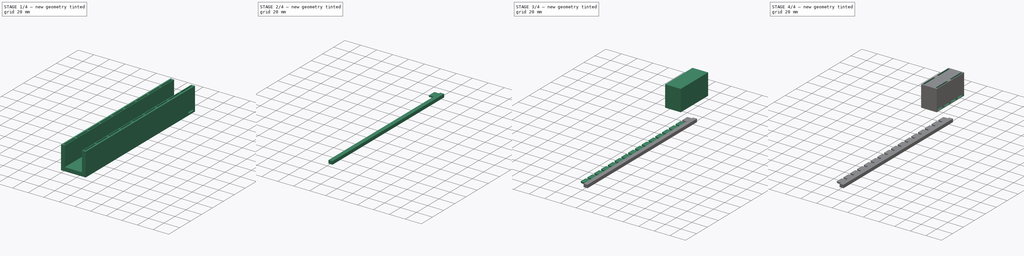
[diagram: build sequence overview — one tinted view per stage of 4, left to right]
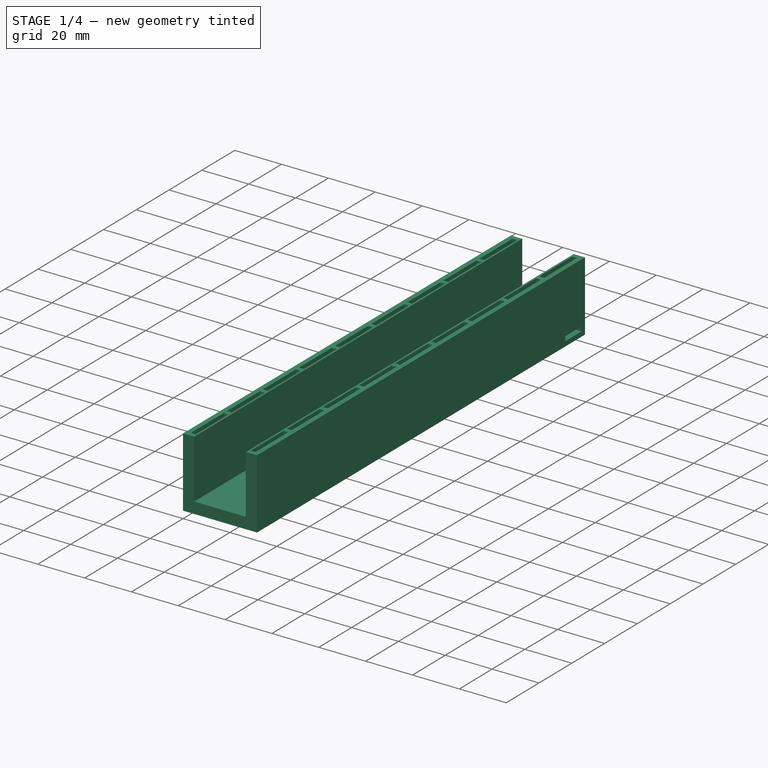
[diagram: stage 1 of 4 — iso view after this stage's code; geometry added in this stage tinted green]
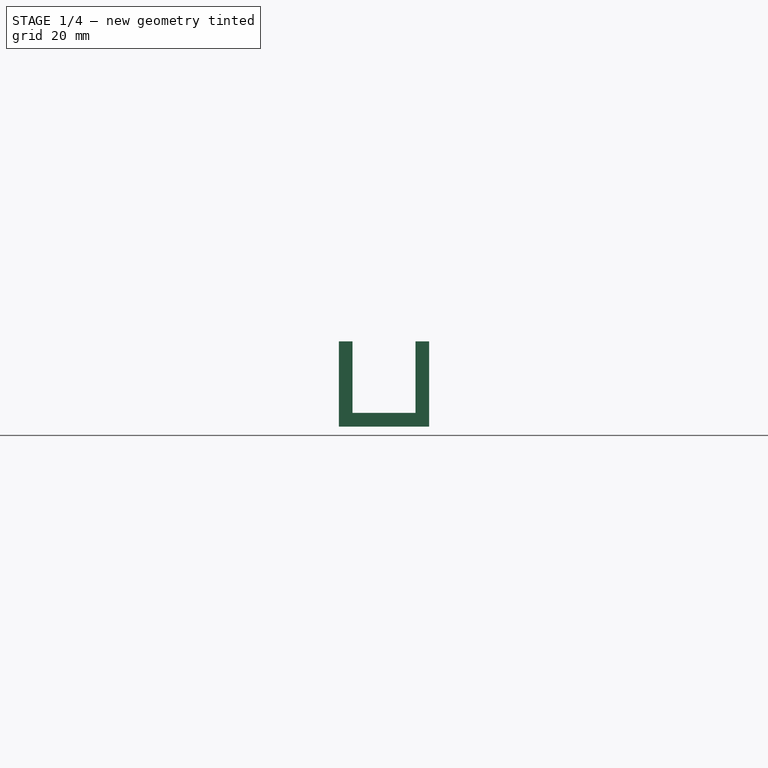
[diagram: stage 1 of 4 — front view after this stage's code; geometry added in this stage tinted green]
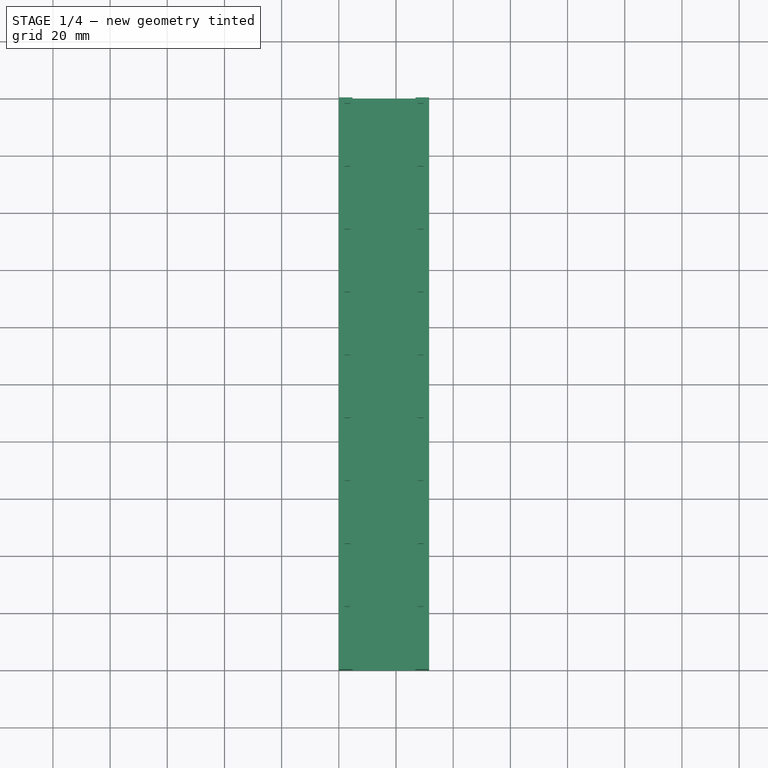
[diagram: stage 1 of 4 — top view after this stage's code; geometry added in this stage tinted green]
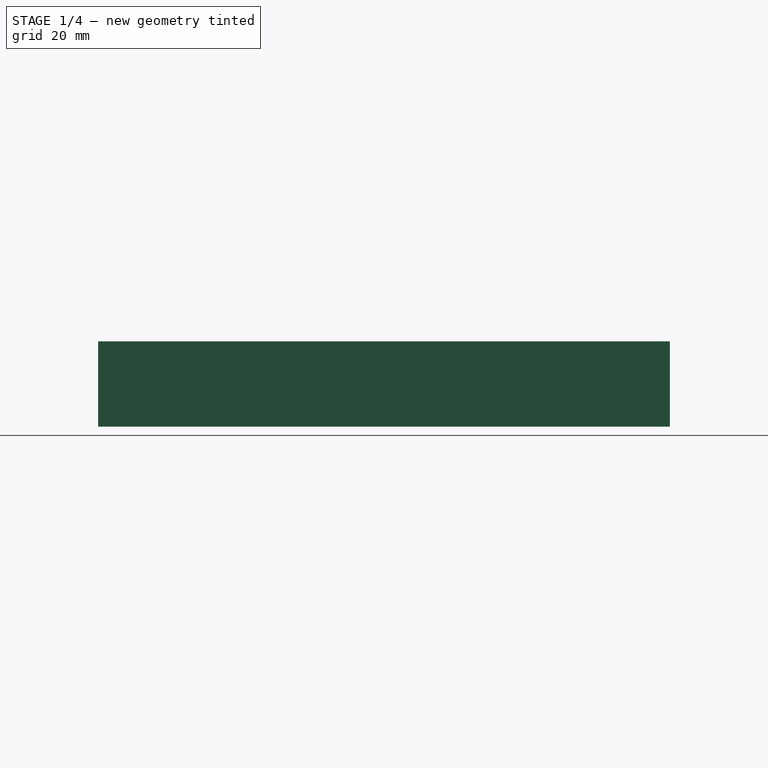
[diagram: stage 1 of 4 — right view after this stage's code; geometry added in this stage tinted green]
FCSTD DOCUMENT  (FreeCAD 0.21R33694 (Git))
Label: maglev2
License: All rights reserved
LicenseURL: http://en.wikipedia.org/wiki/All_rights_reserved
objects: Sketcher::SketchObject×8, PartDesign::LinearPattern×5, PartDesign::Pad×4, PartDesign::Pocket×4, PartDesign::Body×3, PartDesign::ShapeBinder×2, PartDesign::Chamfer×1
note: 36 computed .brp shape members not serialized (recipe doc carries the construction recipe); baked Part::Feature solids carry a one-line shape summary decoded from their .brp

FEATURE [Sketcher::SketchObject] Sketch
  FullyConstrained = true
  MapMode = 5
  Placement = pos=(0,0,0) rot=(1,0,0;1.5708rad)
  Support = -> [XZ_Plane]
  sketch-geometry (8):
    g0: LineSegment StartX=0 StartY=0 StartZ=0 EndX=0 EndY=29.8 EndZ=0
    g1: LineSegment StartX=0 StartY=29.8 StartZ=0 EndX=4.8 EndY=29.8 EndZ=0
    g2: LineSegment StartX=4.8 StartY=29.8 StartZ=0 EndX=4.8 EndY=4.8 EndZ=0
    g3: LineSegment StartX=4.8 StartY=4.8 StartZ=0 EndX=26.8 EndY=4.8 EndZ=0
    g4: LineSegment StartX=26.8 StartY=4.8 StartZ=0 EndX=26.8 EndY=29.8 EndZ=0
    g5: LineSegment StartX=26.8 StartY=29.8 StartZ=0 EndX=31.6 EndY=29.8 EndZ=0
    g6: LineSegment StartX=31.6 StartY=29.8 StartZ=0 EndX=31.6 EndY=0 EndZ=0
    g7: LineSegment StartX=31.6 StartY=0 StartZ=0 EndX=0 EndY=0 EndZ=0
  constraints (23):
    c: Coincident(g0,g-1)
    c: PointOnObject(g0,g-2)
    c: Coincident(g1,g0)
    c: Horizontal(g1)
    c: Coincident(g2,g1)
    c: Vertical(g2)
    c: Coincident(g3,g2)
    c: Horizontal(g3)
    c: Coincident(g4,g3)
    c: Vertical(g4)
    c: Coincident(g5,g4)
    c: Horizontal(g5)
    c: Coincident(g6,g5)
    c: PointOnObject(g6,g-1)
    c: Vertical(g6)
    c: Coincident(g7,g6)
    c: Coincident(g7,g0)
    c: Equal(g1,g5)
    c: Equal(g2,g4)
    c: DistanceX(g5,g5) = 4.8
    c: DistanceY(g6,g3) = 4.8
    c: DistanceY(g4,g4) = 25
    c: DistanceX(g3,g3) = 22
FEATURE [PartDesign::Pad] Pad
  Direction = (0,-1,-2e-16)
  Length = 200
  Length2 = 10
  Placement = pos=(0,0,0) rot=(1,0,0;1.5708rad)
  Profile = -> Sketch
  ReferenceAxis = -> Sketch [N_Axis]
  Type = 0
FEATURE [Sketcher::SketchObject] Sketch001
  ExternalGeometry = -> [Pad]
  FullyConstrained = true
  MapMode = 5
  Placement = pos=(0,0,29.8) rot=(0,0,1;3.14159rad)
  Support = -> [Pad]
  sketch-geometry (12):
    g0: LineSegment StartX=-29.6 StartY=22 StartZ=0 EndX=-27.6 EndY=22 EndZ=0
    g1: LineSegment StartX=-27.6 StartY=22 StartZ=0 EndX=-27.6 EndY=2 EndZ=0
    g2: LineSegment StartX=-27.6 StartY=2 StartZ=0 EndX=-29.6 EndY=2 EndZ=0
    g3: LineSegment StartX=-29.6 StartY=2 StartZ=0 EndX=-29.6 EndY=22 EndZ=0
    g4: LineSegment StartX=-4 StartY=22 StartZ=0 EndX=-2 EndY=22 EndZ=0
    g5: LineSegment StartX=-2 StartY=22 StartZ=0 EndX=-2 EndY=2 EndZ=0
    g6: LineSegment StartX=-2 StartY=2 StartZ=0 EndX=-4 EndY=2 EndZ=0
    g7: LineSegment StartX=-4 StartY=2 StartZ=0 EndX=-4 EndY=22 EndZ=0
    g8: LineSegment StartX=-29.6 StartY=2 StartZ=0 EndX=-31.6 EndY=2 EndZ=0
    g9: LineSegment StartX=-29.6 StartY=2 StartZ=0 EndX=-29.6 EndY=0 EndZ=0
    g10: LineSegment StartX=-4 StartY=2 StartZ=0 EndX=-4 EndY=0 EndZ=0
    g11: LineSegment StartX=-2 StartY=2 StartZ=0 EndX=0 EndY=2 EndZ=0
  constraints (36):
    c: Coincident(g0,g1)
    c: Coincident(g1,g2)
    c: Coincident(g2,g3)
    c: Coincident(g3,g0)
    c: Horizontal(g0)
    c: Horizontal(g2)
    c: Vertical(g1)
    c: Vertical(g3)
    c: Coincident(g4,g5)
    c: Coincident(g5,g6)
    c: Coincident(g6,g7)
    c: Coincident(g7,g4)
    c: Horizontal(g4)
    c: Horizontal(g6)
    c: Vertical(g5)
    c: Vertical(g7)
    c: Equal(g2,g6)
    c: DistanceX(g6,g6) = 2
    c: DistanceY(g5,g5) = 20
    c: Equal(g1,g7)
    c: Coincident(g8,g2)
    c: PointOnObject(g8,g-6)
    c: Horizontal(g8)
    c: Coincident(g9,g2)
    c: PointOnObject(g9,g-7)
    c: Vertical(g9)
    c: Equal(g9,g8)
    c: Coincident(g10,g6)
    c: PointOnObject(g10,g-8)
    c: Vertical(g10)
    c: Coincident(g11,g5)
    c: PointOnObject(g11,g-4)
    c: Horizontal(g11)
    c: DistanceX(g-8,g6) = 0.8
    c: DistanceX(g1,g-7) = 0.8
    c: Equal(g10,g11)
FEATURE [PartDesign::Pocket] Pocket
  BaseFeature = -> Pad
  Direction = (0,2e-16,-1)
  Length = 12
  Length2 = 5
  Placement = pos=(0,0,0) rot=(1,0,0;1.5708rad)
  Profile = -> Sketch001
  ReferenceAxis = -> Sketch001 [N_Axis]
  Type = 0
FEATURE [PartDesign::LinearPattern] LinearPattern
  BaseFeature = -> Pocket
  Direction = -> Sketch001 [V_Axis]
  Length = 198
  Occurrences = 10
  Originals = -> [Pocket]
  Placement = pos=(0,0,0) rot=(1,0,0;1.5708rad)
FEATURE [Sketcher::SketchObject] Sketch002
  FullyConstrained = true
  MapMode = 5
  Placement = pos=(31.6,0,0) rot=(0.707107,0,0.707107;3.14159rad)
  Support = -> [LinearPattern]
  sketch-geometry (4):
    g0: LineSegment StartX=2 StartY=12 StartZ=0 EndX=4 EndY=12 EndZ=0
    g1: LineSegment StartX=4 StartY=12 StartZ=0 EndX=4 EndY=2 EndZ=0
    g2: LineSegment StartX=4 StartY=2 StartZ=0 EndX=2 EndY=2 EndZ=0
    g3: LineSegment StartX=2 StartY=2 StartZ=0 EndX=2 EndY=12 EndZ=0
  constraints (12):
    c: Coincident(g0,g1)
    c: Coincident(g1,g2)
    c: Coincident(g2,g3)
    c: Coincident(g3,g0)
    c: Horizontal(g0)
    c: Horizontal(g2)
    c: Vertical(g1)
    c: Vertical(g3)
    c: DistanceX(g2,g2) = 2
    c: DistanceY(g1,g1) = 10
    c: DistanceY(g-1,g2) = 2
    c: DistanceX(g-1,g2) = 2
FEATURE [PartDesign::Pocket] Pocket001
  BaseFeature = -> LinearPattern
  Direction = (-1,0,2e-16)
  Length = 25.8
  Length2 = 5
  Placement = pos=(0,0,0) rot=(1,0,0;1.5708rad)
  Profile = -> Sketch002
  ReferenceAxis = -> Sketch002 [N_Axis]
  Type = 0
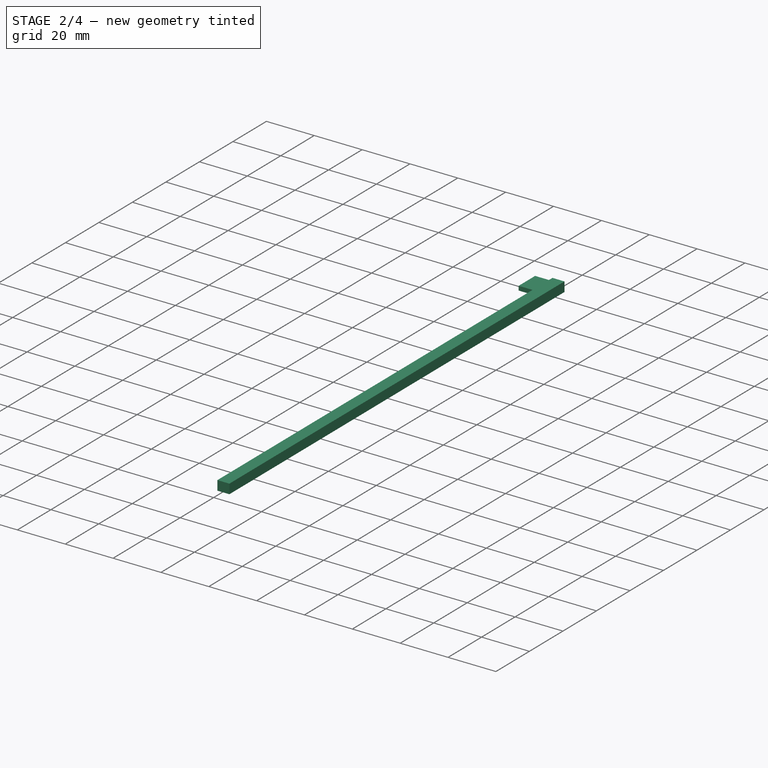
[diagram: stage 2 of 4 — iso view after this stage's code; geometry added in this stage tinted green]
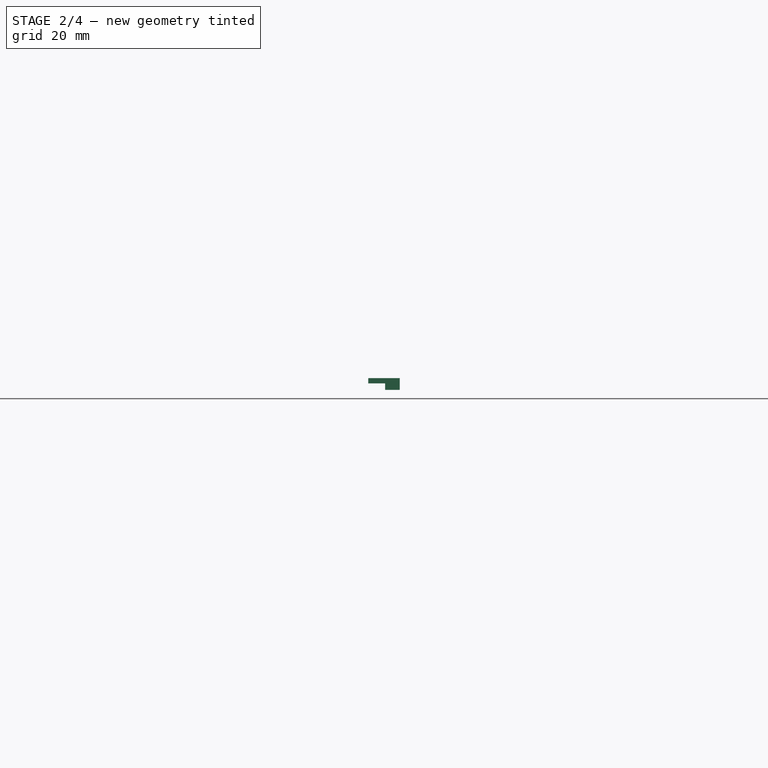
[diagram: stage 2 of 4 — front view after this stage's code; geometry added in this stage tinted green]
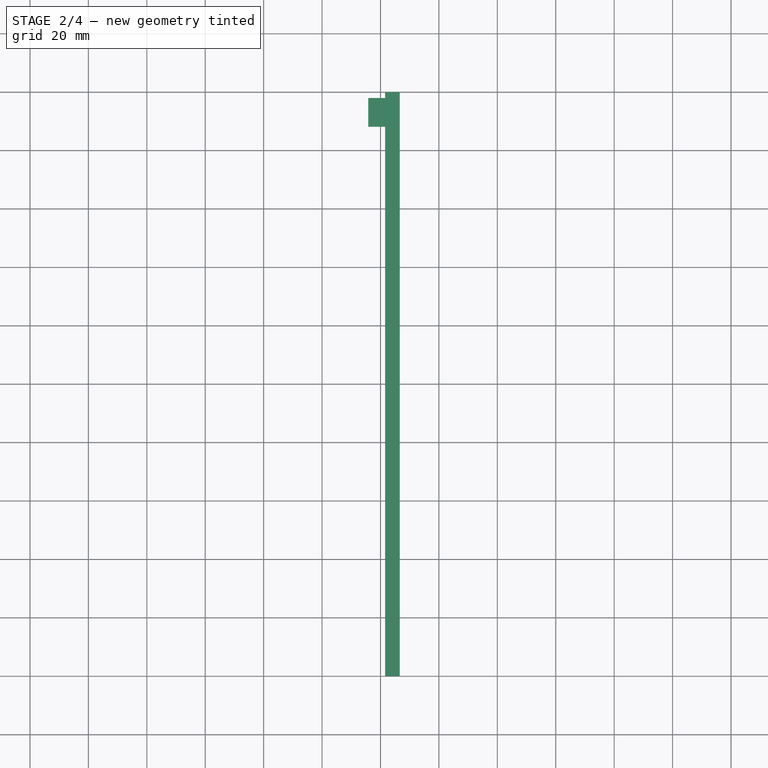
[diagram: stage 2 of 4 — top view after this stage's code; geometry added in this stage tinted green]
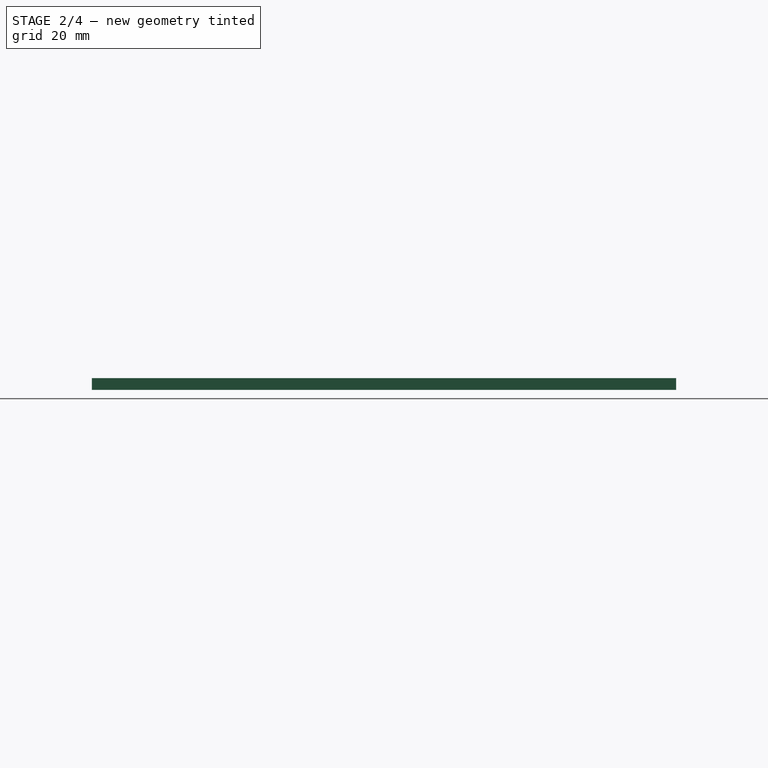
[diagram: stage 2 of 4 — right view after this stage's code; geometry added in this stage tinted green]
FEATURE [PartDesign::LinearPattern] LinearPattern001
  BaseFeature = -> Pocket001
  Direction = -> Sketch002 [V_Axis]
  Length = 198
  Occurrences = 17
  Originals = -> [Pocket001]
  Placement = pos=(0,0,0) rot=(1,0,0;1.5708rad)
FEATURE [PartDesign::Body] Body001  label="Locomotive"
  Group = -> [ShapeBinder,Sketch003,Pad001,Sketch004,Pocket002,LinearPattern002,Sketch005,Pocket003,LinearPattern003]
  Origin = -> Origin001
  Tip = -> LinearPattern003
FEATURE [PartDesign::ShapeBinder] ShapeBinder001
  Placement = pos=(0,0,0) rot=(1,0,0;1.5708rad)
  Support = -> [LinearPattern001]
  TraceSupport = false
FEATURE [Sketcher::SketchObject] Sketch006
  FullyConstrained = true
  MapMode = 5
  Placement = pos=(31.6,0,0) rot=(0.707107,0,0.707107;3.14159rad)
  Support = -> [ShapeBinder001]
  sketch-geometry (4):
    g0: LineSegment StartX=0 StartY=0 StartZ=0 EndX=4 EndY=0 EndZ=0
    g1: LineSegment StartX=4 StartY=0 StartZ=0 EndX=4 EndY=200 EndZ=0
    g2: LineSegment StartX=4 StartY=200 StartZ=0 EndX=0 EndY=200 EndZ=0
    g3: LineSegment StartX=0 StartY=200 StartZ=0 EndX=0 EndY=0 EndZ=0
  constraints (11):
    c: Coincident(g0,g1)
    c: Coincident(g1,g2)
    c: Coincident(g2,g3)
    c: Coincident(g3,g0)
    c: Horizontal(g0)
    c: Horizontal(g2)
    c: Vertical(g1)
    c: Vertical(g3)
    c: Coincident(g0,g-1)
    c: DistanceY(g3,g3) = 200
    c: DistanceX(g0,g0) = 4
FEATURE [PartDesign::Pad] Pad002
  Direction = (1,0,-2e-16)
  Length = 15
  Length2 = -10
  Placement = pos=(0,0,0) rot=(1,0,0;1.5708rad)
  Profile = -> Sketch006
  ReferenceAxis = -> Sketch006 [N_Axis]
  Type = 4
FEATURE [Sketcher::SketchObject] Sketch007
  ExternalGeometry = -> [Pad002]
  FullyConstrained = true
  MapMode = 5
  Placement = pos=(41.6,0,0) rot=(0.707107,0,-0.707107;3.14159rad)
  Support = -> [Pad002]
  sketch-geometry (4):
    g0: LineSegment StartX=-4 StartY=2.1 StartZ=0 EndX=-2.2 EndY=2.1 EndZ=0
    g1: LineSegment StartX=-2.2 StartY=2.1 StartZ=0 EndX=-2.2 EndY=11.9 EndZ=0
    g2: LineSegment StartX=-2.2 StartY=11.9 StartZ=0 EndX=-4 EndY=11.9 EndZ=0
    g3: LineSegment StartX=-4 StartY=11.9 StartZ=0 EndX=-4 EndY=2.1 EndZ=0
  constraints (12):
    c: Coincident(g0,g1)
    c: Coincident(g1,g2)
    c: Coincident(g2,g3)
    c: Coincident(g3,g0)
    c: Horizontal(g0)
    c: Horizontal(g2)
    c: Vertical(g1)
    c: Vertical(g3)
    c: PointOnObject(g0,g-3)
    c: DistanceY(g3,g3) = 9.8
    c: DistanceX(g0,g0) = 1.8
    c: DistanceY(g-3,g0) = 2.1
FEATURE [PartDesign::Pad] Pad003
  BaseFeature = -> Pad002
  Direction = (-1,0,-2e-16)
  Length = 5.8
  Length2 = 10
  Placement = pos=(0,0,0) rot=(1,0,0;1.5708rad)
  Profile = -> Sketch007
  ReferenceAxis = -> Sketch007 [N_Axis]
  Type = 0
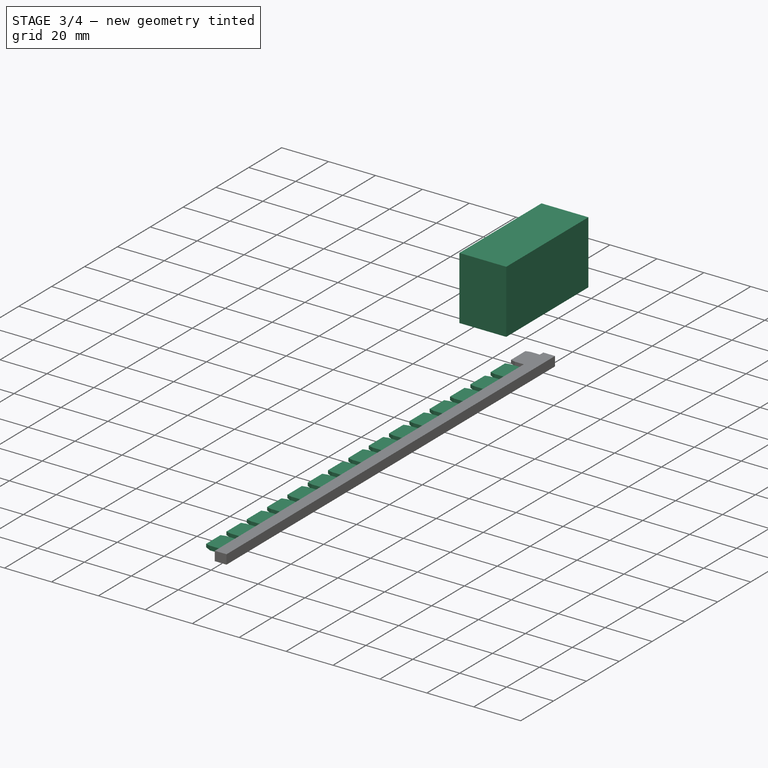
[diagram: stage 3 of 4 — iso view after this stage's code; geometry added in this stage tinted green]
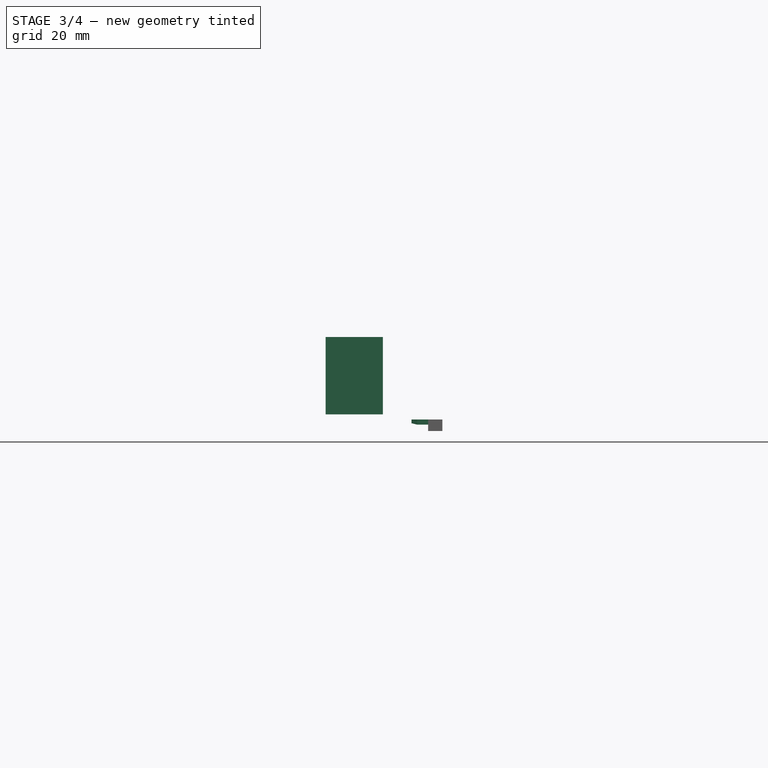
[diagram: stage 3 of 4 — front view after this stage's code; geometry added in this stage tinted green]
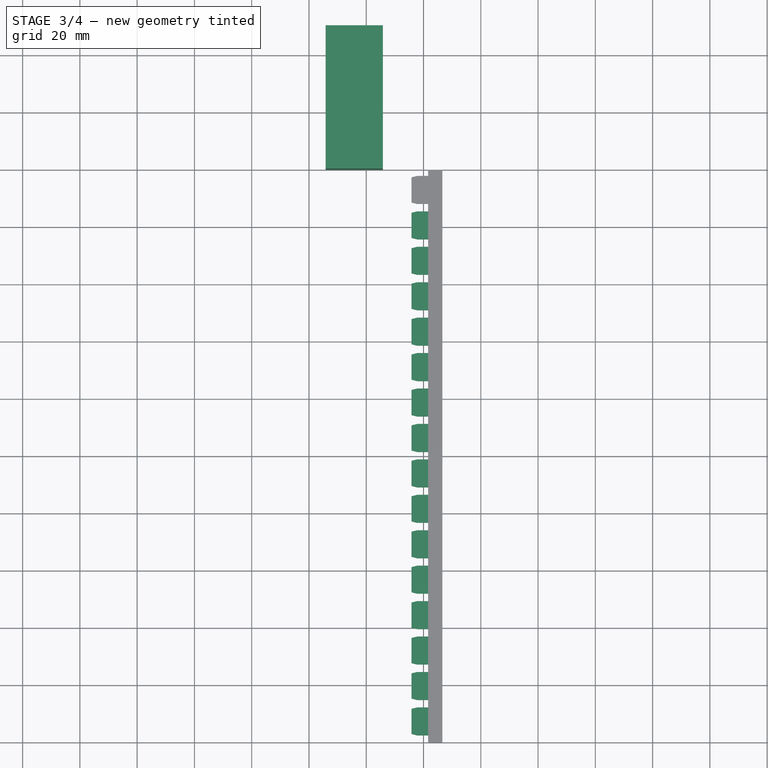
[diagram: stage 3 of 4 — top view after this stage's code; geometry added in this stage tinted green]
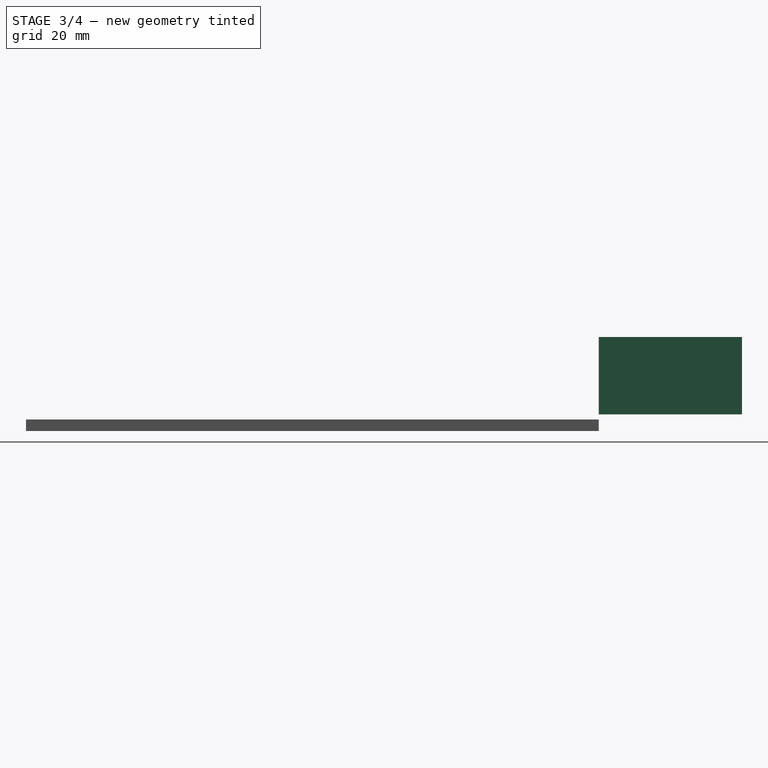
[diagram: stage 3 of 4 — right view after this stage's code; geometry added in this stage tinted green]
FEATURE [PartDesign::Body] Body  label="Rail"
  Group = -> [Sketch,Pad,Sketch001,Pocket,LinearPattern,Sketch002,Pocket001,LinearPattern001]
  Origin = -> Origin
  Tip = -> LinearPattern001
FEATURE [PartDesign::ShapeBinder] ShapeBinder
  Support = -> [LinearPattern001]
  TraceSupport = false
FEATURE [Sketcher::SketchObject] Sketch003
  ExternalGeometry = -> [ShapeBinder]
  FullyConstrained = true
  MapMode = 5
  Placement = pos=(0,0,0) rot=(0,0.707107,0.707107;3.14159rad)
  Support = -> [ShapeBinder]
  sketch-geometry (7):
    g0: LineSegment StartX=-25.8 StartY=32.8 StartZ=0 EndX=-5.8 EndY=32.8 EndZ=0
    g1: LineSegment StartX=-5.8 StartY=32.8 StartZ=0 EndX=-5.8 EndY=5.8 EndZ=0
    g2: LineSegment StartX=-5.8 StartY=5.8 StartZ=0 EndX=-25.8 EndY=5.8 EndZ=0
    g3: LineSegment StartX=-25.8 StartY=5.8 StartZ=0 EndX=-25.8 EndY=32.8 EndZ=0
    g4: LineSegment StartX=-25.8 StartY=5.8 StartZ=0 EndX=-25.8 EndY=4.8 EndZ=0
    g5: LineSegment StartX=-25.8 StartY=5.8 StartZ=0 EndX=-26.8 EndY=5.8 EndZ=0
    g6: LineSegment StartX=-5.8 StartY=5.8 StartZ=0 EndX=-4.8 EndY=5.8 EndZ=0
  constraints (21):
    c: Coincident(g0,g1)
    c: Coincident(g1,g2)
    c: Coincident(g2,g3)
    c: Coincident(g3,g0)
    c: Horizontal(g0)
    c: Horizontal(g2)
    c: Vertical(g1)
    c: Vertical(g3)
    c: Coincident(g4,g2)
    c: PointOnObject(g4,g-4)
    c: Vertical(g4)
    c: DistanceX(g2,g2) = 20
    c: DistanceY(g-5,g0) = 3
    c: Coincident(g5,g2)
    c: PointOnObject(g5,g-5)
    c: Horizontal(g5)
    c: Coincident(g6,g1)
    c: PointOnObject(g6,g-3)
    c: Horizontal(g6)
    c: Equal(g6,g4)
    c: Equal(g4,g5)
FEATURE [PartDesign::Pad] Pad001
  Direction = (0,1,-2e-16)
  Length = 50
  Length2 = 10
  Profile = -> Sketch003
  ReferenceAxis = -> Sketch003 [N_Axis]
  Type = 0
FEATURE [PartDesign::Chamfer] Chamfer
  Angle = 45
  Base = -> Pad003 [Edge25,Edge24,Edge22]
  BaseFeature = -> Pad003
  ChamferType = 1
  FlipDirection = false
  Placement = pos=(0,0,0) rot=(1,0,0;1.5708rad)
  Size = 2
  Size2 = 0.5
  SupportTransform = false
  UseAllEdges = false
FEATURE [PartDesign::LinearPattern] LinearPattern004
  BaseFeature = -> Chamfer
  Direction = -> Sketch007 [V_Axis]
  Length = 198
  Occurrences = 17
  Originals = -> [Pad003,Chamfer]
  Placement = pos=(0,0,0) rot=(1,0,0;1.5708rad)
FEATURE [PartDesign::Body] Body002  label="Plug"
  Group = -> [ShapeBinder001,Sketch006,Pad002,Sketch007,Pad003,Chamfer,LinearPattern004]
  Origin = -> Origin002
  Tip = -> LinearPattern004
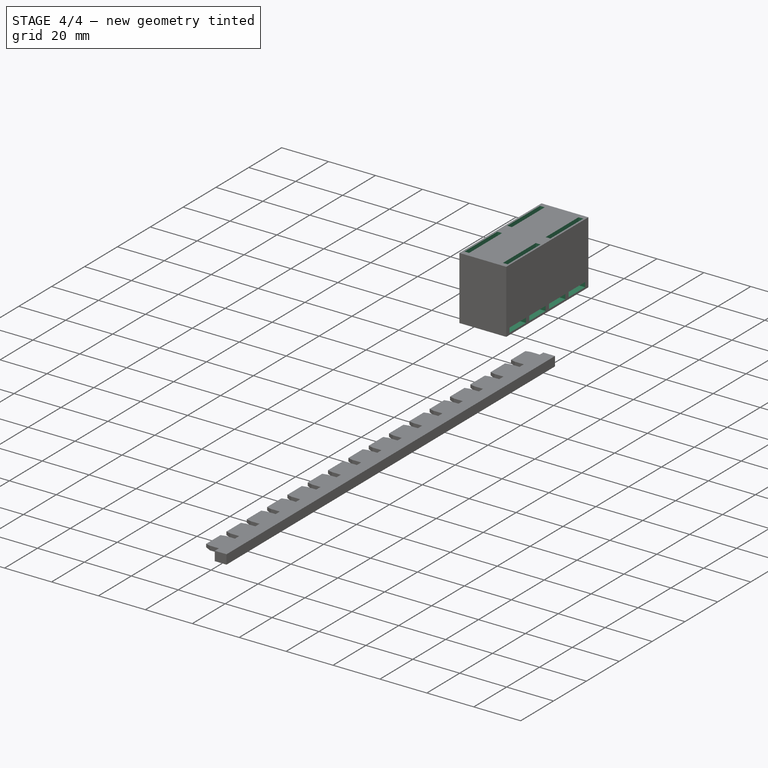
[diagram: stage 4 of 4 — iso view after this stage's code; geometry added in this stage tinted green]
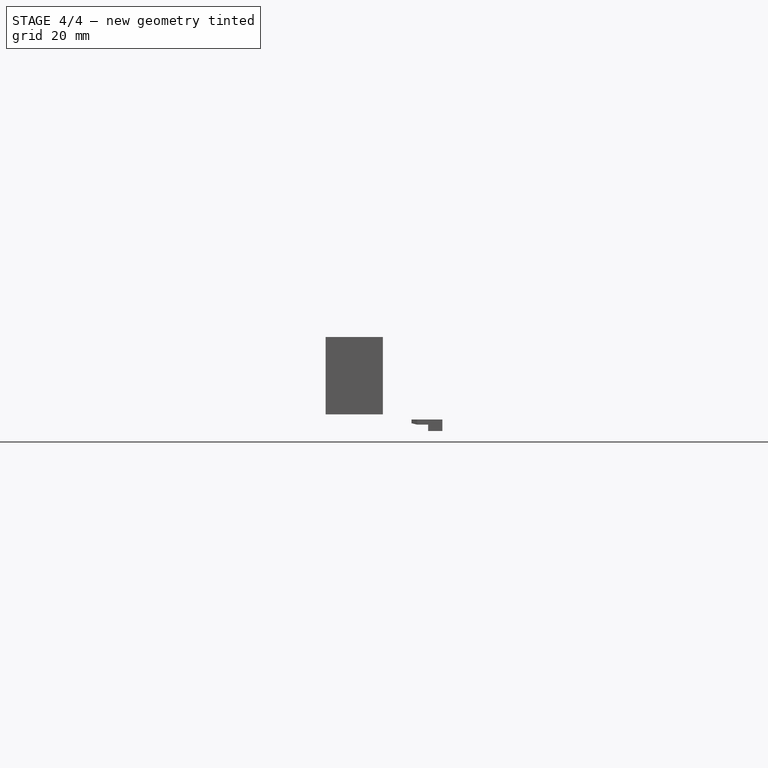
[diagram: stage 4 of 4 — front view after this stage's code; geometry added in this stage tinted green]
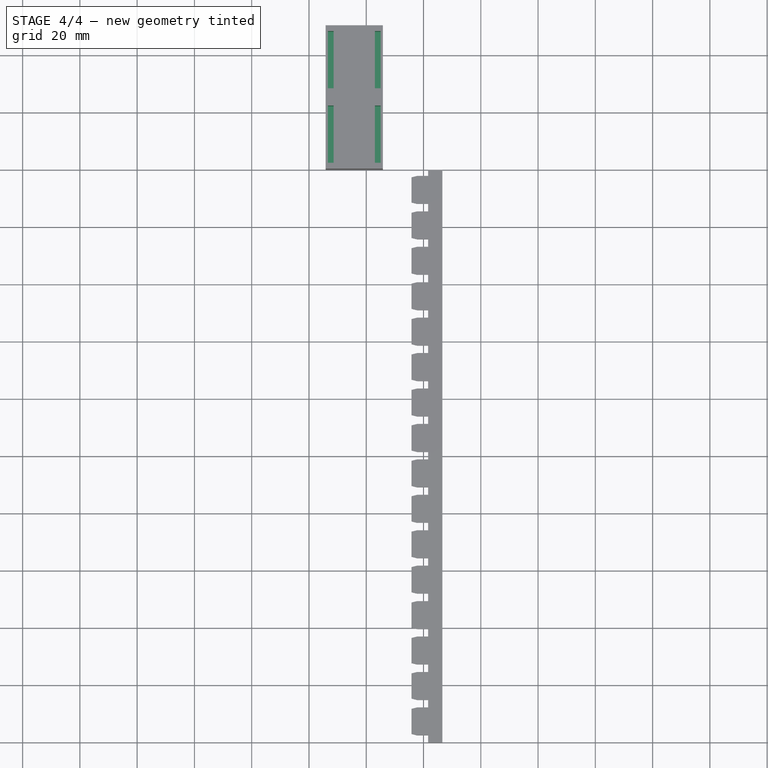
[diagram: stage 4 of 4 — top view after this stage's code; geometry added in this stage tinted green]
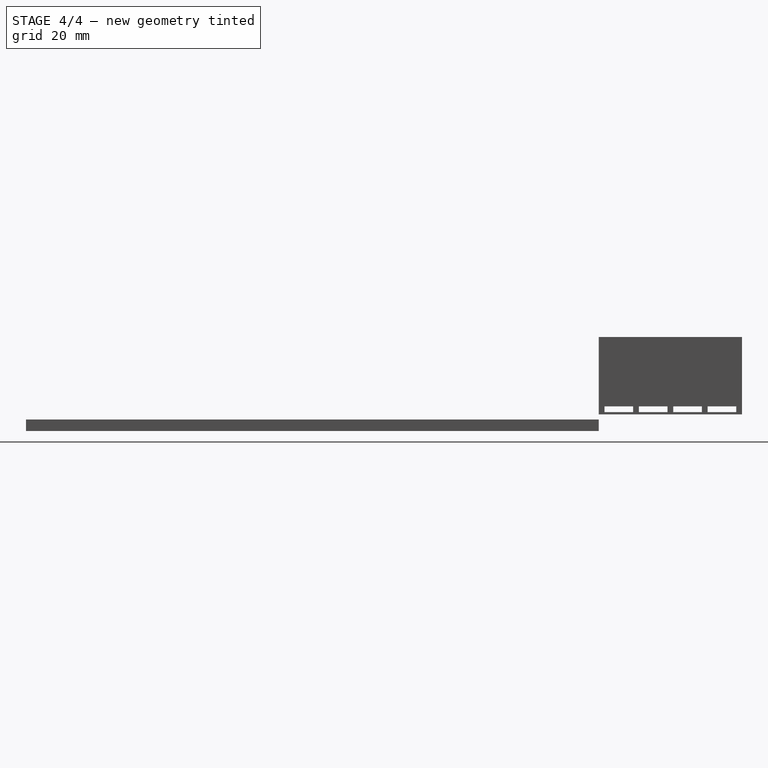
[diagram: stage 4 of 4 — right view after this stage's code; geometry added in this stage tinted green]
FEATURE [Sketcher::SketchObject] Sketch004
  ExternalGeometry = -> [Pad001]
  FullyConstrained = true
  MapMode = 5
  Placement = pos=(5.8,0,0) rot=(0.57735,-0.57735,-0.57735;2.0944rad)
  Support = -> [Pad001]
  sketch-geometry (4):
    g0: LineSegment StartX=-2 StartY=8.6 StartZ=0 EndX=-12 EndY=8.6 EndZ=0
    g1: LineSegment StartX=-12 StartY=8.6 StartZ=0 EndX=-12 EndY=6.6 EndZ=0
    g2: LineSegment StartX=-12 StartY=6.6 StartZ=0 EndX=-2 EndY=6.6 EndZ=0
    g3: LineSegment StartX=-2 StartY=6.6 StartZ=0 EndX=-2 EndY=8.6 EndZ=0
  constraints (12):
    c: Coincident(g0,g1)
    c: Coincident(g1,g2)
    c: Coincident(g2,g3)
    c: Coincident(g3,g0)
    c: Horizontal(g0)
    c: Horizontal(g2)
    c: Vertical(g1)
    c: Vertical(g3)
    c: DistanceX(g2,g2) = 10
    c: DistanceY(g1,g1) = 2
    c: DistanceY(g-4,g2) = 0.8
    c: DistanceX(g2,g-4) = 2
FEATURE [PartDesign::Pocket] Pocket002
  BaseFeature = -> Pad001
  Direction = (1,-1e-16,1e-16)
  Length = 5
  Length2 = 5
  Profile = -> Sketch004
  ReferenceAxis = -> Sketch004 [N_Axis]
  Type = 1
FEATURE [PartDesign::LinearPattern] LinearPattern002
  BaseFeature = -> Pocket002
  Direction = -> Sketch004 [H_Axis]
  Length = 36
  Occurrences = 4
  Originals = -> [Pocket002]
  Reversed = true
FEATURE [Sketcher::SketchObject] Sketch005
  ExternalGeometry = -> [LinearPattern002]
  FullyConstrained = true
  MapMode = 5
  Placement = pos=(0,2.18e-14,32.8) rot=(0,0,1;0rad)
  Support = -> [LinearPattern002]
  sketch-geometry (9):
    g0: LineSegment StartX=8.6 StartY=22 StartZ=0 EndX=6.6 EndY=22 EndZ=0
    g1: LineSegment StartX=6.6 StartY=22 StartZ=0 EndX=6.6 EndY=2 EndZ=0
    g2: LineSegment StartX=6.6 StartY=2 StartZ=0 EndX=8.6 EndY=2 EndZ=0
    g3: LineSegment StartX=8.6 StartY=2 StartZ=0 EndX=8.6 EndY=22 EndZ=0
    g4: LineSegment StartX=23 StartY=22 StartZ=0 EndX=25 EndY=22 EndZ=0
    g5: LineSegment StartX=25 StartY=22 StartZ=0 EndX=25 EndY=2 EndZ=0
    g6: LineSegment StartX=25 StartY=2 StartZ=0 EndX=23 EndY=2 EndZ=0
    g7: LineSegment StartX=23 StartY=2 StartZ=0 EndX=23 EndY=22 EndZ=0
    g8: LineSegment StartX=6.6 StartY=2 StartZ=0 EndX=23 EndY=2 EndZ=0
  constraints (26):
    c: Coincident(g0,g1)
    c: Coincident(g1,g2)
    c: Coincident(g2,g3)
    c: Coincident(g3,g0)
    c: Horizontal(g0)
    c: Horizontal(g2)
    c: Vertical(g1)
    c: Vertical(g3)
    c: Coincident(g4,g5)
    c: Coincident(g5,g6)
    c: Coincident(g6,g7)
    c: Coincident(g7,g4)
    c: Horizontal(g4)
    c: Horizontal(g6)
    c: Vertical(g5)
    c: Vertical(g7)
    c: Equal(g2,g6)
    c: Equal(g1,g7)
    c: DistanceY(g5,g5) = 20
    c: DistanceX(g6,g6) = 2
    c: Coincident(g8,g1)
    c: Coincident(g8,g6)
    c: Horizontal(g8)
    c: DistanceY(g-4,g5) = 2
    c: DistanceX(g5,g-4) = 0.8
    c: DistanceX(g-5,g1) = 0.8
FEATURE [PartDesign::Pocket] Pocket003
  BaseFeature = -> LinearPattern002
  Direction = (0,-7e-16,-1)
  Length = 15
  Length2 = 5
  Profile = -> Sketch005
  ReferenceAxis = -> Sketch005 [N_Axis]
  Type = 0
FEATURE [PartDesign::LinearPattern] LinearPattern003
  BaseFeature = -> Pocket003
  Direction = -> Sketch005 [V_Axis]
  Length = 26
  Occurrences = 2
  Originals = -> [Pocket003]
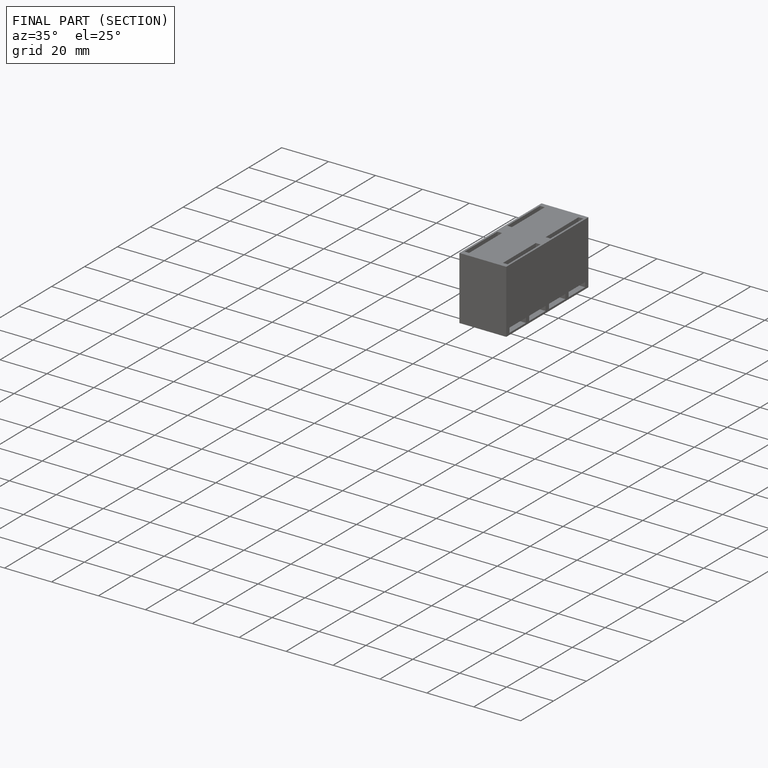
[diagram: finished part — half-section view (interior)]
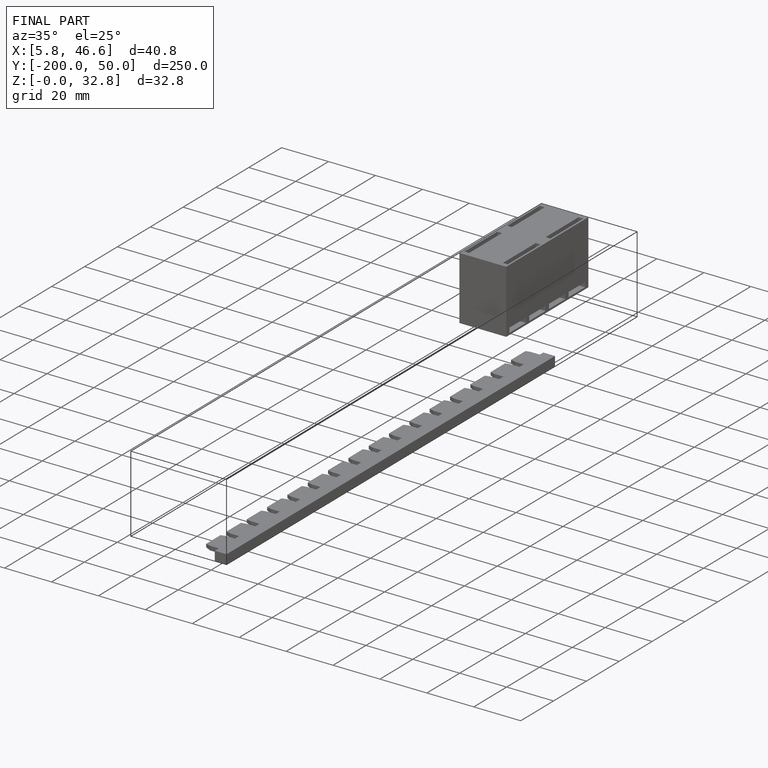
[diagram: finished part — iso view with bounding-box wireframe]
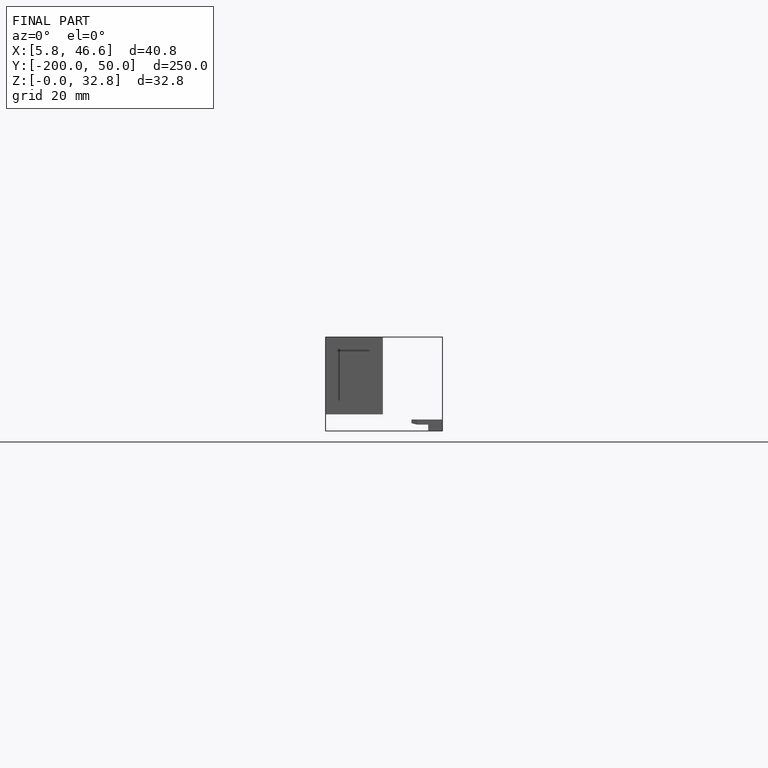
[diagram: finished part — front view with bounding-box wireframe]
